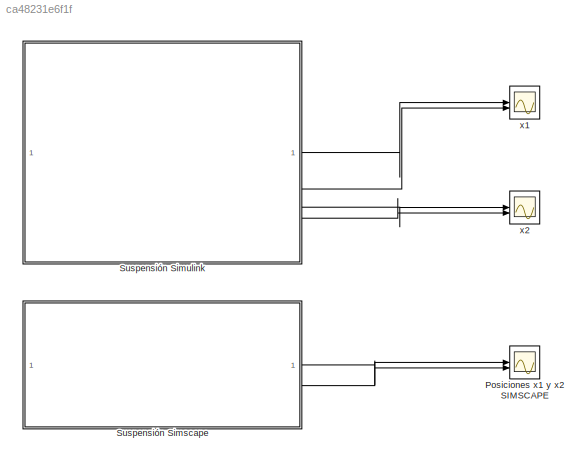
MODEL slx_ca48231e6f1f
KIND model
CONFIG AbsTol = auto
CONFIG EnableMultiTasking = off
CONFIG FixedStep = auto
CONFIG MaxStep = 0.00001
CONFIG MinStep = auto
CONFIG RelTol = 1e-3
CONFIG SampleTimeConstraint = Unconstrained
CONFIG SolverName = VariableStepAuto
CONFIG StartTime = 0.0
CONFIG StopTime = 10.0
BLOCK [Scope] Posiciones x1 y x2 SIMSCAPE
  Floating = off
  NumInputPorts = 2
  ScopeSpecificationString = Simulink.scopes.TimeScopeBlockCfg('CurrentConfiguration', extmgr.ConfigurationSet(extmgr.Configuration('Core','General UI',true),extmgr.Configuration('Core','Source UI',true),extmgr.Configuration('Sources','WiredSimulink',true,'DataLoggingVariableName','ScopeData3'),extmgr.Configuration('Visuals','Time Domain',true,'SerializedDisplays',{struct('MinYLimReal','-0.01156','MaxYLimReal','0.10404','YLab...<+2094ch>
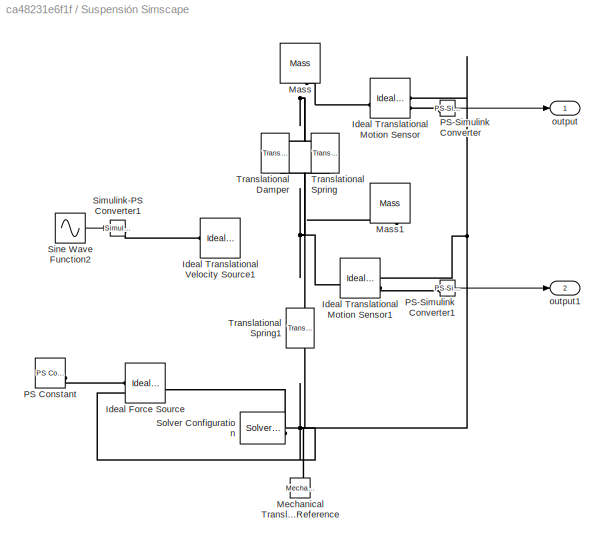
BLOCK [SubSystem] Suspensión Simscape
BLOCK [Reference] Suspensión Simscape/Ideal Force Source  REF=fl_lib/Mechanical/Mechanical Sources/Ideal Force Source
  SourceBlock = fl_lib/Mechanical/Mechanical Sources/Ideal Force Source
  SourceType = Ideal Force Source
BLOCK [Reference] Suspensión Simscape/Ideal Translational Motion Sensor  REF=fl_lib/Mechanical/Mechanical Sensors/Ideal Translational
Motion Sensor
  SourceBlock = fl_lib/Mechanical/Mechanical Sensors/Ideal Translational\nMotion Sensor
  SourceType = Ideal Translational\nMotion Sensor
BLOCK [Reference] Suspensión Simscape/Ideal Translational Motion Sensor1  REF=fl_lib/Mechanical/Mechanical Sensors/Ideal Translational
Motion Sensor
  SourceBlock = fl_lib/Mechanical/Mechanical Sensors/Ideal Translational\nMotion Sensor
  SourceType = Ideal Translational\nMotion Sensor
BLOCK [Reference] Suspensión Simscape/Ideal Translational Velocity Source1  REF=fl_lib/Mechanical/Mechanical Sources/Ideal Translational
Velocity Source
  Commented = on
  SourceBlock = fl_lib/Mechanical/Mechanical Sources/Ideal Translational\nVelocity Source
  SourceType = Ideal Translational\nVelocity Source
BLOCK [Reference] Suspensión Simscape/Mass  REF=fl_lib/Mechanical/Translational
Elements/Mass
  NameLocation = left
  SourceBlock = fl_lib/Mechanical/Translational\nElements/Mass
  SourceType = Mass
BLOCK [Reference] Suspensión Simscape/Mass1  REF=fl_lib/Mechanical/Translational
Elements/Mass
  NameLocation = left
  SourceBlock = fl_lib/Mechanical/Translational\nElements/Mass
  SourceType = Mass
BLOCK [Reference] Suspensión Simscape/Mechanical Translational Reference  REF=fl_lib/Mechanical/Translational
Elements/Mechanical
Translational
Reference
  NameLocation = right
  SourceBlock = fl_lib/Mechanical/Translational\nElements/Mechanical\nTranslational\nReference
  SourceType = Mechanical\nTranslational\nReference
BLOCK [Reference] Suspensión Simscape/PS Constant  REF=fl_lib/Physical Signals/Sources/PS Constant
  SourceBlock = fl_lib/Physical Signals/Sources/PS Constant
  SourceType = PS Constant
BLOCK [Reference] Suspensión Simscape/PS-Simulink Converter  REF=nesl_utility/PS-Simulink
Converter
  SourceBlock = nesl_utility/PS-Simulink\nConverter
  SourceType = PS-Simulink\nConverter
BLOCK [Reference] Suspensión Simscape/PS-Simulink Converter1  REF=nesl_utility/PS-Simulink
Converter
  SourceBlock = nesl_utility/PS-Simulink\nConverter
  SourceType = PS-Simulink\nConverter
BLOCK [Reference] Suspensión Simscape/Simulink-PS Converter1  REF=nesl_utility/Simulink-PS
Converter
  Commented = on
  SourceBlock = nesl_utility/Simulink-PS\nConverter
  SourceType = Simulink-PS\nConverter
BLOCK [Sin] Suspensión Simscape/Sine Wave Function2
  Amplitude = 0.05*k2
  Commented = on
  Frequency = 62.83
  SampleTime = 0
BLOCK [Reference] Suspensión Simscape/Solver Configuration  REF=nesl_utility/Solver
Configuration
  SourceBlock = nesl_utility/Solver\nConfiguration
  SourceType = Solver\nConfiguration
BLOCK [Reference] Suspensión Simscape/Translational Damper  REF=fl_lib/Mechanical/Translational
Elements/Translational Damper
  NameLocation = right
  SourceBlock = fl_lib/Mechanical/Translational\nElements/Translational Damper
  SourceType = Translational Damper
BLOCK [Reference] Suspensión Simscape/Translational Spring  REF=fl_lib/Mechanical/Translational
Elements/Translational Spring
  NameLocation = right
  SourceBlock = fl_lib/Mechanical/Translational\nElements/Translational Spring
  SourceType = Translational Spring
BLOCK [Reference] Suspensión Simscape/Translational Spring1  REF=fl_lib/Mechanical/Translational
Elements/Translational Spring
  NameLocation = right
  SourceBlock = fl_lib/Mechanical/Translational\nElements/Translational Spring
  SourceType = Translational Spring
BLOCK [Outport] Suspensión Simscape/output
BLOCK [Outport] Suspensión Simscape/output1
  Port = 2
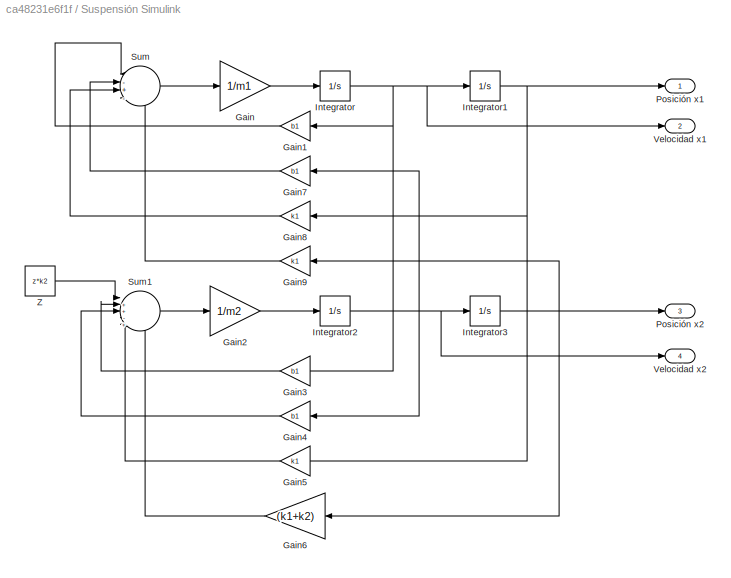
BLOCK [SubSystem] Suspensión Simulink
BLOCK [Gain] Suspensión Simulink/Gain
  Gain = 1/m1
BLOCK [Gain] Suspensión Simulink/Gain1
  Gain = b1
  NameLocation = top
BLOCK [Gain] Suspensión Simulink/Gain2
  Gain = 1/m2
BLOCK [Gain] Suspensión Simulink/Gain3
  Gain = b1
  NameLocation = top
BLOCK [Gain] Suspensión Simulink/Gain4
  Gain = b1
  NameLocation = top
BLOCK [Gain] Suspensión Simulink/Gain5
  Gain = k1
  NameLocation = top
BLOCK [Gain] Suspensión Simulink/Gain6
  Gain = (k1+k2)
  NameLocation = top
BLOCK [Gain] Suspensión Simulink/Gain7
  Gain = b1
  NameLocation = top
BLOCK [Gain] Suspensión Simulink/Gain8
  Gain = k1
  NameLocation = top
BLOCK [Gain] Suspensión Simulink/Gain9
  Gain = k1
  NameLocation = top
BLOCK [Integrator] Suspensión Simulink/Integrator
BLOCK [Integrator] Suspensión Simulink/Integrator1
BLOCK [Integrator] Suspensión Simulink/Integrator2
BLOCK [Integrator] Suspensión Simulink/Integrator3
BLOCK [Outport] Suspensión Simulink/Posición x1
BLOCK [Outport] Suspensión Simulink/Posición x2
  Port = 3
BLOCK [Sum] Suspensión Simulink/Sum
  Inputs = |-+-+
BLOCK [Sum] Suspensión Simulink/Sum1
  Inputs = |++-+-
BLOCK [Outport] Suspensión Simulink/Velocidad x1
  Port = 2
BLOCK [Outport] Suspensión Simulink/Velocidad x2
  Port = 4
BLOCK [Constant] Suspensión Simulink/Z
  Value = z*k2
BLOCK [Scope] x1
  Floating = off
  NumInputPorts = 2
  ScopeSpecificationString = Simulink.scopes.TimeScopeBlockCfg('CurrentConfiguration', extmgr.ConfigurationSet(extmgr.Configuration('Core','General UI',true),extmgr.Configuration('Core','Source UI',true),extmgr.Configuration('Sources','WiredSimulink',true,'DataLoggingVariableName','ScopeData1'),extmgr.Configuration('Visuals','Time Domain',true,'SerializedDisplays',{struct('MinYLimReal','-0.01156','MaxYLimReal','0.10404','YLab...<+1995ch>
BLOCK [Scope] x2
  Floating = off
  NumInputPorts = 2
  ScopeSpecificationString = Simulink.scopes.TimeScopeBlockCfg('CurrentConfiguration', extmgr.ConfigurationSet(extmgr.Configuration('Core','General UI',true),extmgr.Configuration('Core','Source UI',true),extmgr.Configuration('Sources','WiredSimulink',true,'DataLoggingVariableName','ScopeData2'),extmgr.Configuration('Visuals','Time Domain',true,'SerializedDisplays',{struct('MinYLimReal','-0.00893','MaxYLimReal','0.08037','YLab...<+2040ch>
LINE Suspensión Simscape/PS-Simulink Converter1:1 -> Suspensión Simscape/output1:1
LINE Suspensión Simscape/PS-Simulink Converter:1 -> Suspensión Simscape/output:1
LINE Suspensión Simscape/Sine Wave Function2:1 -> Suspensión Simscape/Simulink-PS Converter1:1
LINE Suspensión Simscape:1 -> Posiciones x1 y x2 SIMSCAPE:1
LINE Suspensión Simscape:2 -> Posiciones x1 y x2 SIMSCAPE:2
LINE Suspensión Simulink/Gain1:1 -> Suspensión Simulink/Sum:1
LINE Suspensión Simulink/Gain2:1 -> Suspensión Simulink/Integrator2:1
LINE Suspensión Simulink/Gain3:1 -> Suspensión Simulink/Sum1:2
LINE Suspensión Simulink/Gain4:1 -> Suspensión Simulink/Sum1:3
LINE Suspensión Simulink/Gain5:1 -> Suspensión Simulink/Sum1:4
LINE Suspensión Simulink/Gain6:1 -> Suspensión Simulink/Sum1:5
LINE Suspensión Simulink/Gain7:1 -> Suspensión Simulink/Sum:2
LINE Suspensión Simulink/Gain8:1 -> Suspensión Simulink/Sum:3
LINE Suspensión Simulink/Gain9:1 -> Suspensión Simulink/Sum:4
LINE Suspensión Simulink/Gain:1 -> Suspensión Simulink/Integrator:1
NET Suspensión Simulink/Integrator1:1 -> Suspensión Simulink/Gain5:1, Suspensión Simulink/Gain8:1, Suspensión Simulink/Posición x1:1
NET Suspensión Simulink/Integrator2:1 -> Suspensión Simulink/Gain4:1, Suspensión Simulink/Gain7:1, Suspensión Simulink/Integrator3:1, Suspensión Simulink/Velocidad x2:1
NET Suspensión Simulink/Integrator3:1 -> Suspensión Simulink/Gain6:1, Suspensión Simulink/Gain9:1, Suspensión Simulink/Posición x2:1
NET Suspensión Simulink/Integrator:1 -> Suspensión Simulink/Gain1:1, Suspensión Simulink/Gain3:1, Suspensión Simulink/Integrator1:1, Suspensión Simulink/Velocidad x1:1
LINE Suspensión Simulink/Sum1:1 -> Suspensión Simulink/Gain2:1
LINE Suspensión Simulink/Sum:1 -> Suspensión Simulink/Gain:1
LINE Suspensión Simulink/Z:1 -> Suspensión Simulink/Sum1:1
LINE Suspensión Simulink:1 -> x1:1
LINE Suspensión Simulink:2 -> x1:2
LINE Suspensión Simulink:3 -> x2:1
LINE Suspensión Simulink:4 -> x2:2
PNET net1: Suspensión Simscape/Ideal Force Source:LConn1 -- Suspensión Simscape/Ideal Force Source:RConn2 -- Suspensión Simscape/Ideal Translational Motion Sensor1:RConn1 -- Suspensión Simscape/Ideal Translational Motion Sensor:RConn1 -- Suspensión Simscape/Mechanical Translational Reference:LConn1 -- Suspensión Simscape/Solver Configuration:RConn1 -- Suspensión Simscape/Translational Spring1:LConn1
PLINE Suspensión Simscape/Ideal Force Source:RConn1 -- Suspensión Simscape/PS Constant:RConn1
PNET net2: Suspensión Simscape/Ideal Translational Motion Sensor1:LConn1 -- Suspensión Simscape/Mass1:LConn1 -- Suspensión Simscape/Translational Damper:LConn1 -- Suspensión Simscape/Translational Spring1:RConn1 -- Suspensión Simscape/Translational Spring:LConn1
PLINE Suspensión Simscape/Ideal Translational Motion Sensor1:RConn2 -- Suspensión Simscape/PS-Simulink Converter1:LConn1
PNET net3: Suspensión Simscape/Ideal Translational Motion Sensor:LConn1 -- Suspensión Simscape/Mass:LConn1 -- Suspensión Simscape/Translational Damper:RConn1 -- Suspensión Simscape/Translational Spring:RConn1
PLINE Suspensión Simscape/Ideal Translational Motion Sensor:RConn2 -- Suspensión Simscape/PS-Simulink Converter:LConn1
PLINE Suspensión Simscape/Ideal Translational Velocity Source1:RConn1 -- Suspensión Simscape/Simulink-PS Converter1:RConn1
note: NET lines group one-source signal fan-out (src -> all destinations, sorted); 1:1 wires keep LINE; PNET lines group multi-terminal physical nets as a canonical sorted terminal list (undirected conserving connections); 2-terminal nets keep the pairwise PLINE form
